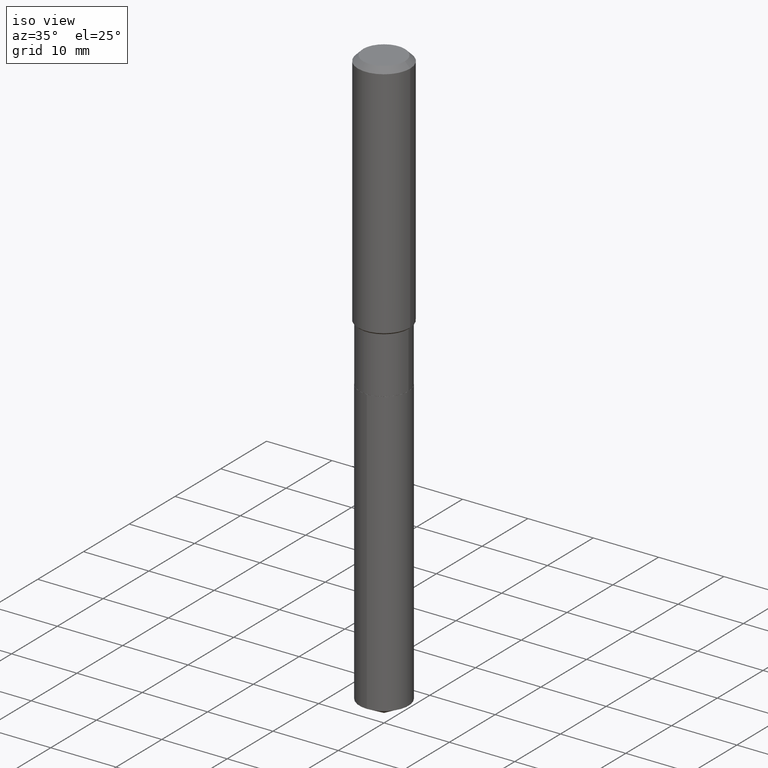
[diagram: clean part render]
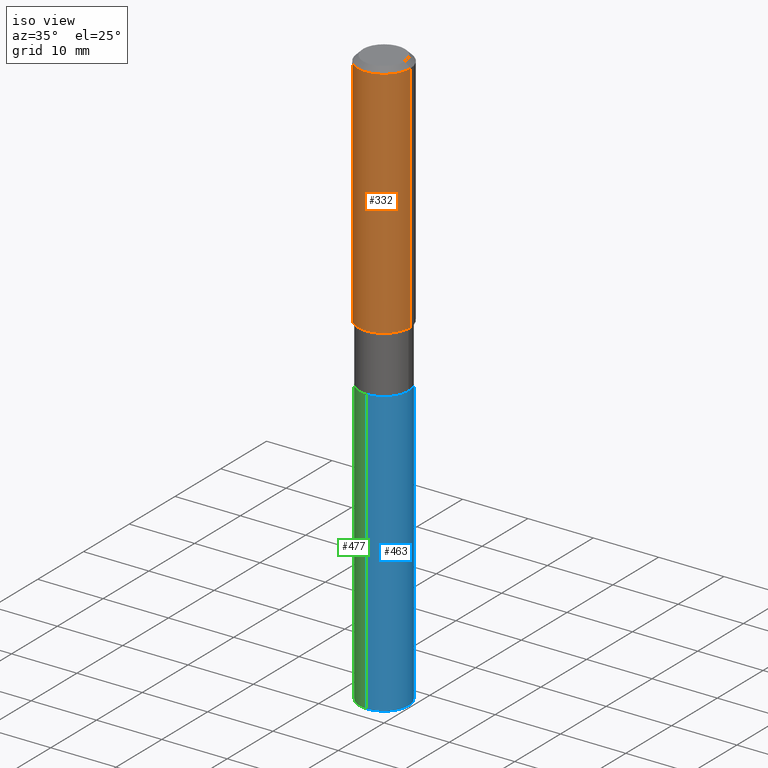
[diagram: same view with three faces highlighted in distinct colors, each labeled with its STEP entity id]
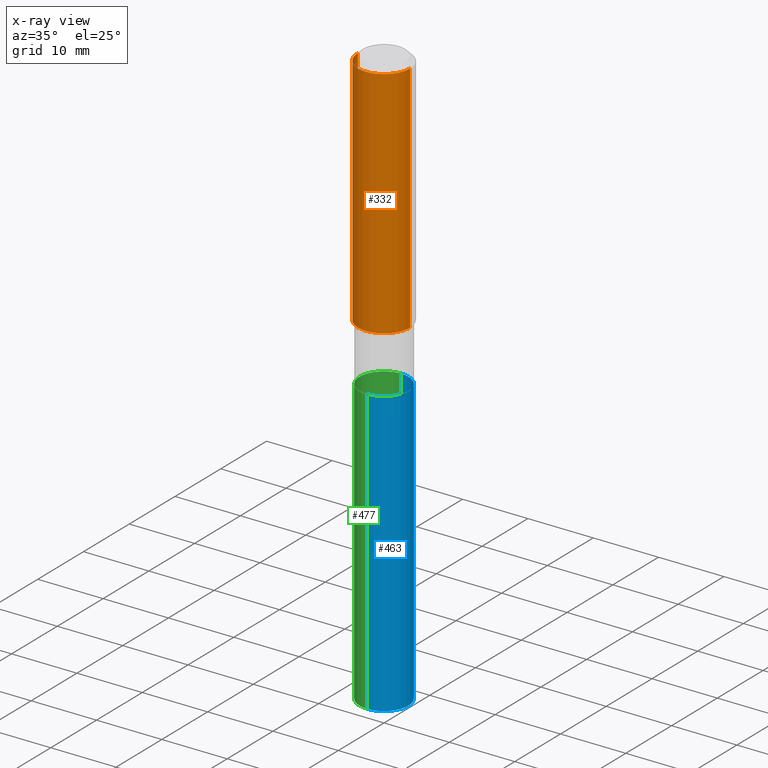
[diagram: x-ray of the same camera — body ghosted, the three highlighted faces saturated]
A machine part, iso view with three faces highlighted in distinct colors.
The next image is the same camera in x-ray (body ghosted, the three faces saturated) — at least one of them is partly hidden behind the body in this view.
Their STEP definitions:

[orange] entity #332 — the highlighted cylindrical surface (edge-blend (fillet) strip) has radius 4.0005 mm, axis along (-0, 0, 1).
#2 = VERTEX_POINT ( 'NONE', #211 ) ;
#3 = CARTESIAN_POINT ( 'NONE',  ( 7.703226739483228723E-31, -1.099816621735597661E-16, -0.03150000000000019451 ) ) ;
#44 = CARTESIAN_POINT ( 'NONE',  ( -0.1575000000000000011, -1.453156780537057804E-15, -0.03150000000000019451 ) ) ;
#46 = VERTEX_POINT ( 'NONE', #191 ) ;
#80 = ORIENTED_EDGE ( 'NONE', *, *, #153, .F. ) ;
#81 = CIRCLE ( 'NONE', #367, 0.1575000000000001676 ) ;
#92 = ORIENTED_EDGE ( 'NONE', *, *, #283, .T. ) ;
#96 = AXIS2_PLACEMENT_3D ( 'NONE', #3, #156, #458 ) ;
#99 = CARTESIAN_POINT ( 'NONE',  ( 0.000000000000000000, 0.000000000000000000, 0.000000000000000000 ) ) ;
#101 = DIRECTION ( 'NONE',  ( 1.000000000000000000, -6.982962677686267499E-15, 4.876176775795936353E-29 ) ) ;
#109 = VERTEX_POINT ( 'NONE', #122 ) ;
#118 = CIRCLE ( 'NONE', #96, 0.1575000000000000011 ) ;
#122 = CARTESIAN_POINT ( 'NONE',  ( 0.1575000000000001676, -6.134358138280461598E-15, -1.441949999999999843 ) ) ;
#133 = CARTESIAN_POINT ( 'NONE',  ( 0.1575000000000000844, -1.099816621735587677E-15, 7.679978421878603638E-30 ) ) ;
#139 = LINE ( 'NONE', #133, #392 ) ;
#153 = EDGE_CURVE ( 'NONE', #46, #207, #237, .T. ) ;
#156 = DIRECTION ( 'NONE',  ( -2.445468806185136597E-29, 3.491481338843145583E-15, 1.000000000000000000 ) ) ;
#165 = EDGE_CURVE ( 'NONE', #207, #2, #118, .T. ) ;
#173 = CYLINDRICAL_SURFACE ( 'NONE', #256, 0.1575000000000000844 ) ;
#191 = CARTESIAN_POINT ( 'NONE',  ( -0.1575000000000001676, -3.915436707722714937E-15, -1.441949999999999843 ) ) ;
#207 = VERTEX_POINT ( 'NONE', #44 ) ;
#211 = CARTESIAN_POINT ( 'NONE',  ( 0.1575000000000000011, -1.209798283909146741E-15, -0.03150000000000019451 ) ) ;
#237 = LINE ( 'NONE', #289, #468 ) ;
#252 = DIRECTION ( 'NONE',  ( -2.445468806185136597E-29, 3.491481338843145583E-15, 1.000000000000000000 ) ) ;
#256 = AXIS2_PLACEMENT_3D ( 'NONE', #99, #252, #101 ) ;
#259 = EDGE_CURVE ( 'NONE', #109, #2, #139, .T. ) ;
#283 = EDGE_CURVE ( 'NONE', #46, #109, #81, .T. ) ;
#288 = DIRECTION ( 'NONE',  ( -2.445468806185136597E-29, 3.491481338843145583E-15, 1.000000000000000000 ) ) ;
#289 = CARTESIAN_POINT ( 'NONE',  ( -0.1575000000000000844, 1.119104808822158392E-15, -7.747322767151481189E-30 ) ) ;
#293 = DIRECTION ( 'NONE',  ( -2.445468806185136877E-29, 3.491481338843145188E-15, 1.000000000000000000 ) ) ;
#322 = EDGE_LOOP ( 'NONE', ( #80, #92, #429, #462 ) ) ;
#332 = ADVANCED_FACE ( 'NONE', ( #441 ), #173, .T. ) ;
#365 = CARTESIAN_POINT ( 'NONE',  ( 3.526243745078657437E-29, -5.034541516544873329E-15, -1.441949999999999843 ) ) ;
#367 = AXIS2_PLACEMENT_3D ( 'NONE', #365, #288, #478 ) ;
#385 = DIRECTION ( 'NONE',  ( -2.445468806185136877E-29, 3.491481338843145188E-15, 1.000000000000000000 ) ) ;
#392 = VECTOR ( 'NONE', #293, 39.37007874015748143 ) ;
#429 = ORIENTED_EDGE ( 'NONE', *, *, #259, .T. ) ;
#441 = FACE_OUTER_BOUND ( 'NONE', #322, .T. ) ;
#458 = DIRECTION ( 'NONE',  ( 1.000000000000000000, -6.982962677686265922E-15, 0.000000000000000000 ) ) ;
#462 = ORIENTED_EDGE ( 'NONE', *, *, #165, .F. ) ;
#468 = VECTOR ( 'NONE', #385, 39.37007874015748143 ) ;
#478 = DIRECTION ( 'NONE',  ( 1.000000000000000000, -6.982962677686267499E-15, 0.000000000000000000 ) ) ;

[blue] entity #463 — the highlighted cylindrical surface (edge-blend (fillet) strip) has radius 3.7503 mm, axis along (-0, 0, 1).
#4 = VERTEX_POINT ( 'NONE', #469 ) ;
#9 = CARTESIAN_POINT ( 'NONE',  ( 1.049116349349873935E-15, 0.1476499999999937585, -1.791400000000000992 ) ) ;
#28 = FACE_OUTER_BOUND ( 'NONE', #162, .T. ) ;
#42 = ORIENTED_EDGE ( 'NONE', *, *, #140, .T. ) ;
#43 = EDGE_CURVE ( 'NONE', #4, #102, #437, .T. ) ;
#51 = DIRECTION ( 'NONE',  ( -2.445434790539434935E-29, 3.491530051183840946E-15, 1.000000000000000000 ) ) ;
#75 = VECTOR ( 'NONE', #51, 39.37007874015748143 ) ;
#82 = CIRCLE ( 'NONE', #394, 0.1476500000000000035 ) ;
#89 = VECTOR ( 'NONE', #465, 39.37007874015748143 ) ;
#102 = VERTEX_POINT ( 'NONE', #9 ) ;
#105 = DIRECTION ( 'NONE',  ( -6.982962677686266711E-15, -1.000000000000000000, 3.700437512582815297E-15 ) ) ;
#108 = CARTESIAN_POINT ( 'NONE',  ( 4.380812819400054846E-29, -6.254639670403612266E-15, -1.791400000000000547 ) ) ;
#130 = VERTEX_POINT ( 'NONE', #163 ) ;
#132 = CARTESIAN_POINT ( 'NONE',  ( -1.031034439360333500E-15, -0.1476500000000062485, -1.791399999999999881 ) ) ;
#140 = EDGE_CURVE ( 'NONE', #130, #102, #330, .T. ) ;
#148 = EDGE_CURVE ( 'NONE', #424, #4, #324, .T. ) ;
#162 = EDGE_LOOP ( 'NONE', ( #442, #42, #193, #312 ) ) ;
#163 = CARTESIAN_POINT ( 'NONE',  ( 1.049116349349873738E-15, 0.1476499999999878188, -3.504193102415183780 ) ) ;
#179 = CYLINDRICAL_SURFACE ( 'NONE', #373, 0.1476500000000000035 ) ;
#182 = CARTESIAN_POINT ( 'NONE',  ( 4.380812819400054846E-29, -6.254639670403612266E-15, -1.791400000000000547 ) ) ;
#193 = ORIENTED_EDGE ( 'NONE', *, *, #43, .F. ) ;
#212 = AXIS2_PLACEMENT_3D ( 'NONE', #108, #482, #447 ) ;
#219 = CARTESIAN_POINT ( 'NONE',  ( -1.031034439360291887E-15, -0.1476500000000122992, -3.504193102415182892 ) ) ;
#258 = DIRECTION ( 'NONE',  ( -2.445434790539434935E-29, 3.491530051183840946E-15, 1.000000000000000000 ) ) ;
#268 = DIRECTION ( 'NONE',  ( -2.445434790539434935E-29, 3.491530051183840946E-15, 1.000000000000000000 ) ) ;
#312 = ORIENTED_EDGE ( 'NONE', *, *, #148, .F. ) ;
#324 = LINE ( 'NONE', #132, #89 ) ;
#330 = LINE ( 'NONE', #473, #75 ) ;
#373 = AXIS2_PLACEMENT_3D ( 'NONE', #182, #258, #414 ) ;
#394 = AXIS2_PLACEMENT_3D ( 'NONE', #446, #268, #105 ) ;
#414 = DIRECTION ( 'NONE',  ( -6.982962677686266711E-15, -1.000000000000000000, 3.700437512582815297E-15 ) ) ;
#424 = VERTEX_POINT ( 'NONE', #219 ) ;
#437 = CIRCLE ( 'NONE', #212, 0.1476500000000000035 ) ;
#442 = ORIENTED_EDGE ( 'NONE', *, *, #481, .T. ) ;
#446 = CARTESIAN_POINT ( 'NONE',  ( 8.569336661042116655E-29, -1.223490825894662631E-14, -3.504193102415183336 ) ) ;
#447 = DIRECTION ( 'NONE',  ( -6.982962677686266711E-15, -1.000000000000000000, 3.700437512582815297E-15 ) ) ;
#463 = ADVANCED_FACE ( 'NONE', ( #28 ), #179, .T. ) ;
#465 = DIRECTION ( 'NONE',  ( -2.445434790539434935E-29, 3.491530051183840946E-15, 1.000000000000000000 ) ) ;
#469 = CARTESIAN_POINT ( 'NONE',  ( -1.031034439360333500E-15, -0.1476500000000062485, -1.791399999999999881 ) ) ;
#473 = CARTESIAN_POINT ( 'NONE',  ( 1.049116349349831731E-15, 0.1476499999999937585, -1.791400000000000992 ) ) ;
#481 = EDGE_CURVE ( 'NONE', #424, #130, #82, .T. ) ;
#482 = DIRECTION ( 'NONE',  ( -2.445434790539434935E-29, 3.491530051183840946E-15, 1.000000000000000000 ) ) ;

[green] entity #477 — the highlighted cylindrical surface (edge-blend (fillet) strip) has radius 3.7503 mm, axis along (-0, 0, 1).
#4 = VERTEX_POINT ( 'NONE', #469 ) ;
#9 = CARTESIAN_POINT ( 'NONE',  ( 1.049116349349873935E-15, 0.1476499999999937585, -1.791400000000000992 ) ) ;
#21 = CIRCLE ( 'NONE', #91, 0.1476500000000000035 ) ;
#51 = DIRECTION ( 'NONE',  ( -2.445434790539434935E-29, 3.491530051183840946E-15, 1.000000000000000000 ) ) ;
#75 = VECTOR ( 'NONE', #51, 39.37007874015748143 ) ;
#89 = VECTOR ( 'NONE', #465, 39.37007874015748143 ) ;
#91 = AXIS2_PLACEMENT_3D ( 'NONE', #106, #216, #450 ) ;
#102 = VERTEX_POINT ( 'NONE', #9 ) ;
#106 = CARTESIAN_POINT ( 'NONE',  ( 4.380812819400054846E-29, -6.254639670403612266E-15, -1.791400000000000547 ) ) ;
#114 = ORIENTED_EDGE ( 'NONE', *, *, #141, .T. ) ;
#115 = EDGE_LOOP ( 'NONE', ( #123, #114, #431, #456 ) ) ;
#123 = ORIENTED_EDGE ( 'NONE', *, *, #140, .F. ) ;
#130 = VERTEX_POINT ( 'NONE', #163 ) ;
#132 = CARTESIAN_POINT ( 'NONE',  ( -1.031034439360333500E-15, -0.1476500000000062485, -1.791399999999999881 ) ) ;
#140 = EDGE_CURVE ( 'NONE', #130, #102, #330, .T. ) ;
#141 = EDGE_CURVE ( 'NONE', #130, #424, #273, .T. ) ;
#148 = EDGE_CURVE ( 'NONE', #424, #4, #324, .T. ) ;
#163 = CARTESIAN_POINT ( 'NONE',  ( 1.049116349349873738E-15, 0.1476499999999878188, -3.504193102415183780 ) ) ;
#178 = FACE_OUTER_BOUND ( 'NONE', #115, .T. ) ;
#198 = DIRECTION ( 'NONE',  ( -2.445434790539434935E-29, 3.491530051183840946E-15, 1.000000000000000000 ) ) ;
#206 = CARTESIAN_POINT ( 'NONE',  ( 8.569336661042116655E-29, -1.223490825894662631E-14, -3.504193102415183336 ) ) ;
#216 = DIRECTION ( 'NONE',  ( -2.445434790539434935E-29, 3.491530051183840946E-15, 1.000000000000000000 ) ) ;
#219 = CARTESIAN_POINT ( 'NONE',  ( -1.031034439360291887E-15, -0.1476500000000122992, -3.504193102415182892 ) ) ;
#273 = CIRCLE ( 'NONE', #316, 0.1476500000000000035 ) ;
#309 = DIRECTION ( 'NONE',  ( -2.445434790539434935E-29, 3.491530051183840946E-15, 1.000000000000000000 ) ) ;
#316 = AXIS2_PLACEMENT_3D ( 'NONE', #206, #198, #321 ) ;
#321 = DIRECTION ( 'NONE',  ( -6.982962677686266711E-15, -1.000000000000000000, 3.700437512582815297E-15 ) ) ;
#324 = LINE ( 'NONE', #132, #89 ) ;
#330 = LINE ( 'NONE', #473, #75 ) ;
#343 = AXIS2_PLACEMENT_3D ( 'NONE', #488, #309, #349 ) ;
#349 = DIRECTION ( 'NONE',  ( -6.982962677686266711E-15, -1.000000000000000000, 3.700437512582815297E-15 ) ) ;
#424 = VERTEX_POINT ( 'NONE', #219 ) ;
#431 = ORIENTED_EDGE ( 'NONE', *, *, #148, .T. ) ;
#443 = CYLINDRICAL_SURFACE ( 'NONE', #343, 0.1476500000000000035 ) ;
#450 = DIRECTION ( 'NONE',  ( -6.982962677686266711E-15, -1.000000000000000000, 3.700437512582815297E-15 ) ) ;
#453 = EDGE_CURVE ( 'NONE', #102, #4, #21, .T. ) ;
#456 = ORIENTED_EDGE ( 'NONE', *, *, #453, .F. ) ;
#465 = DIRECTION ( 'NONE',  ( -2.445434790539434935E-29, 3.491530051183840946E-15, 1.000000000000000000 ) ) ;
#469 = CARTESIAN_POINT ( 'NONE',  ( -1.031034439360333500E-15, -0.1476500000000062485, -1.791399999999999881 ) ) ;
#473 = CARTESIAN_POINT ( 'NONE',  ( 1.049116349349831731E-15, 0.1476499999999937585, -1.791400000000000992 ) ) ;
#477 = ADVANCED_FACE ( 'NONE', ( #178 ), #443, .T. ) ;
#488 = CARTESIAN_POINT ( 'NONE',  ( 4.380812819400054846E-29, -6.254639670403612266E-15, -1.791400000000000547 ) ) ;